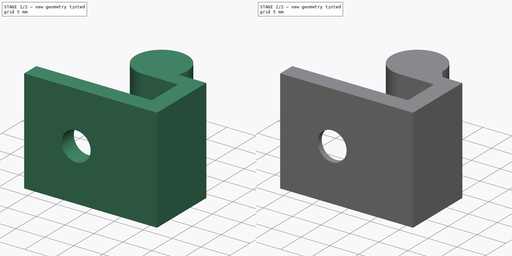
[diagram: build sequence overview — one tinted view per stage of 2, left to right]
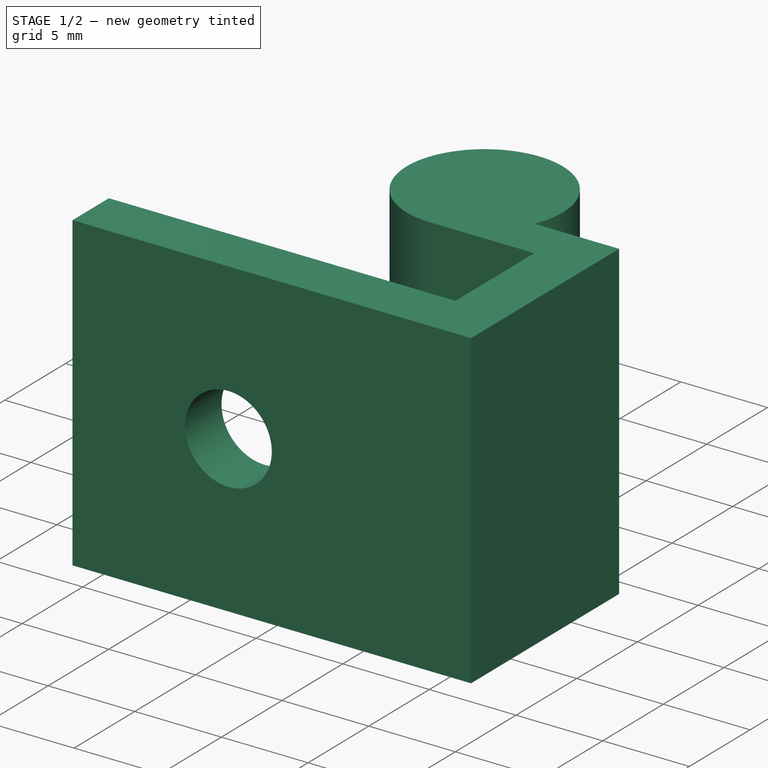
[diagram: stage 1 of 2 — iso view after this stage's code; geometry added in this stage tinted green]
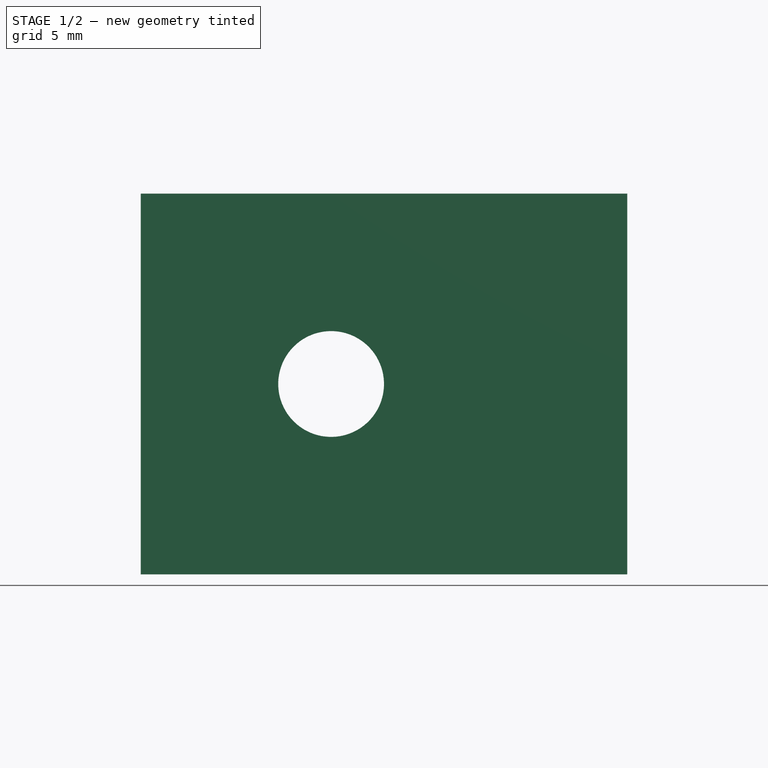
[diagram: stage 1 of 2 — front view after this stage's code; geometry added in this stage tinted green]
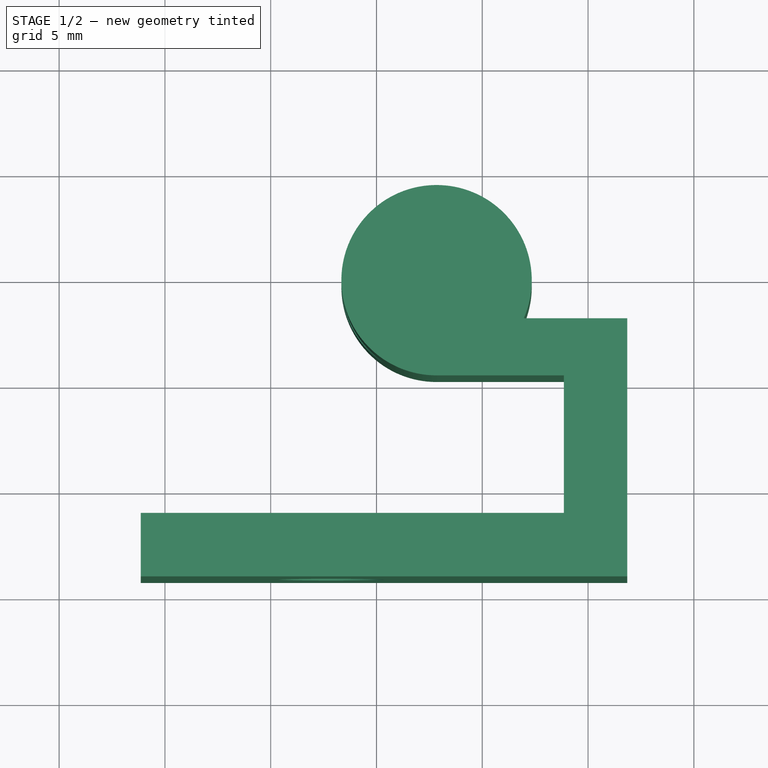
[diagram: stage 1 of 2 — top view after this stage's code; geometry added in this stage tinted green]
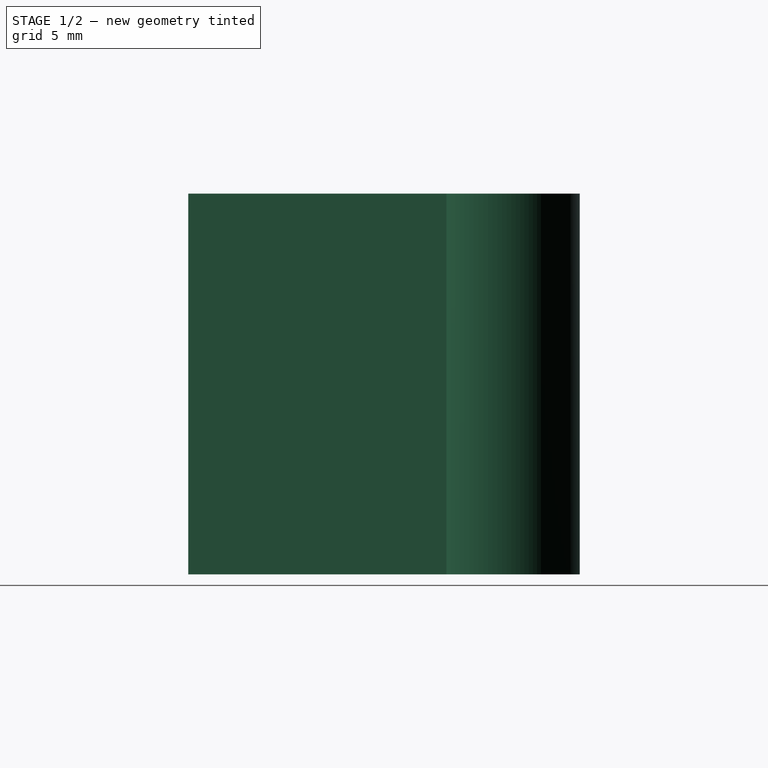
[diagram: stage 1 of 2 — right view after this stage's code; geometry added in this stage tinted green]
FCSTD DOCUMENT  (FreeCAD 0.16R6705 (Git))
Label: cerniera
License: All rights reserved
LicenseURL: http://it.wikipedia.org/wiki/<copyright redacted>
objects: Sketcher::SketchObject×2, PartDesign::Chamfer×2, PartDesign::Pad×1, PartDesign::Pocket×1
note: 8 computed .brp shape members not serialized (recipe doc carries the construction recipe); baked Part::Feature solids carry a one-line shape summary decoded from their .brp

FEATURE [Sketcher::SketchObject] Sketch
  sketch-geometry (9):
    g0: LineSegment StartX=-6.14513 StartY=-9.21448 StartZ=0 EndX=16.8549 EndY=-9.21448 EndZ=0
    g1: LineSegment StartX=16.8549 StartY=-9.21448 StartZ=0 EndX=16.8549 EndY=2.98552 EndZ=0
    g2: LineSegment StartX=-6.14513 StartY=-9.21448 StartZ=0 EndX=-6.14513 EndY=-6.21448 EndZ=0
    g3: LineSegment StartX=-6.14513 StartY=-6.21448 StartZ=0 EndX=13.8549 EndY=-6.21448 EndZ=0
    g4: LineSegment StartX=13.8549 StartY=-6.21448 StartZ=0 EndX=13.8549 EndY=0.285523 EndZ=0
    g5: LineSegment StartX=13.8549 StartY=0.285523 StartZ=0 EndX=7.83937 EndY=0.285523 EndZ=0
    g6: LineSegment StartX=11.9637 StartY=2.98552 StartZ=0 EndX=16.8549 EndY=2.98552 EndZ=0
    g7: GeomPoint [constr] X=16.8549 Y=2.98552 Z=0
    g8: ArcOfCircle CenterX=7.8394 CenterY=4.78552 CenterZ=0 NormalX=0 NormalY=0 NormalZ=1 Radius=4.5 StartAngle=5.87167 EndAngle=10.9956
  constraints (23):
    c: Distance(g0) = 23
    c: Coincident(g1,g0)
    c: Vertical(g1)
    c: Distance(g1) = 12.2
    c: Coincident(g2,g0)
    c: Vertical(g2)
    c: Distance(g2) = 3
    c: Coincident(g3,g2)
    c: Horizontal(g3)
    c: Coincident(g4,g3)
    c: Vertical(g4)
    c: Distance(g4) = 6.5
    c: Coincident(g5,g4)
    c: Horizontal(g5)
    c: Horizontal(g6)
    c: Coincident(g7,g6)
    c: Coincident(g6,g1)
    c: Distance(g3) = 20
    c: Horizontal(g0)
    c: Coincident(g8,g6)
    c: Coincident(g8,g5)
    c: Radius(g8) = 4.5
    c: Tangent(g8,g5)
FEATURE [PartDesign::Pad] Pad
  Length = 18
  Length2 = 100
  Sketch = -> Sketch
  Type = 0
FEATURE [Sketcher::SketchObject] Sketch001
  ExternalGeometry = -> [Pad]
  Placement = pos=(0,-9.21448,0) rot=(1,0,0;1.5708rad)
  Support = -> Pad [Face1]
  sketch-geometry (1):
    g0: Circle CenterX=2.85487 CenterY=9 CenterZ=0 NormalX=0 NormalY=0 NormalZ=1 Radius=2.5
  constraints (3):
    c: Radius(g0) = 2.5
    c: DistanceY(g-1,g0) = 9
    c: DistanceX(g0,g-3) = 14
FEATURE [PartDesign::Pocket] Pocket
  Length = 5
  Sketch = -> Sketch001
  Type = 1
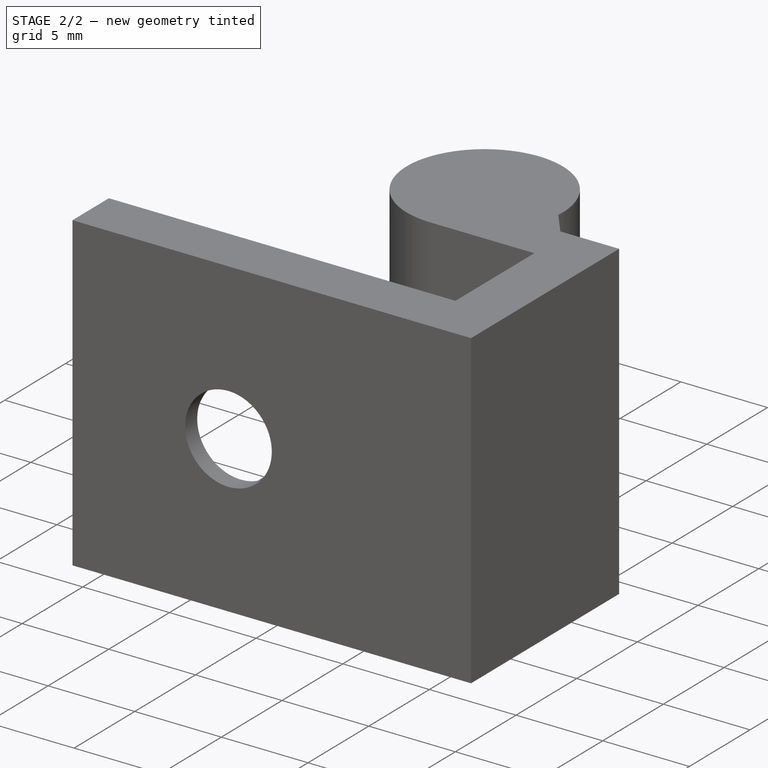
[diagram: stage 2 of 2 — iso view after this stage's code; geometry added in this stage tinted green]
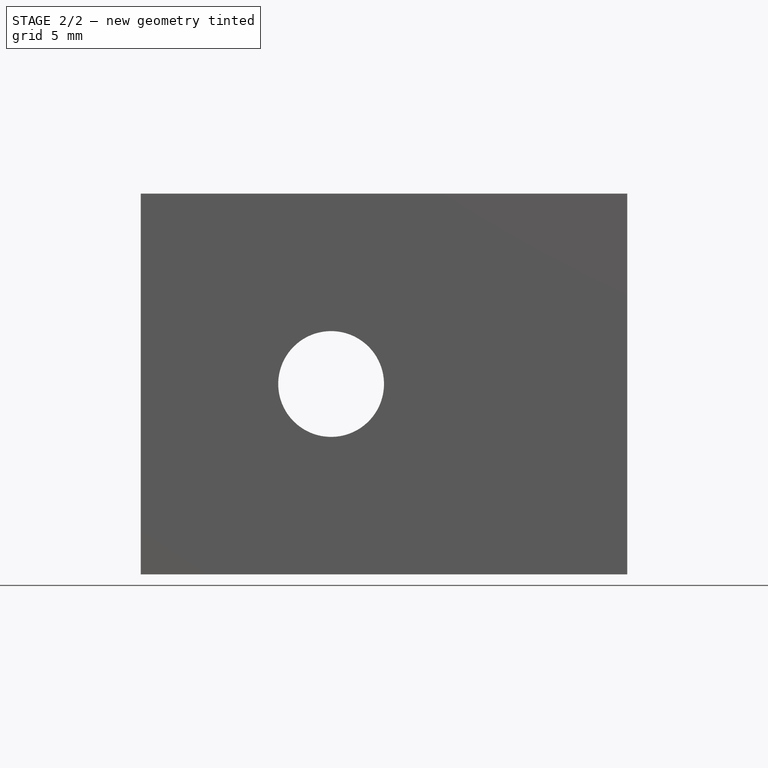
[diagram: stage 2 of 2 — front view after this stage's code; geometry added in this stage tinted green]
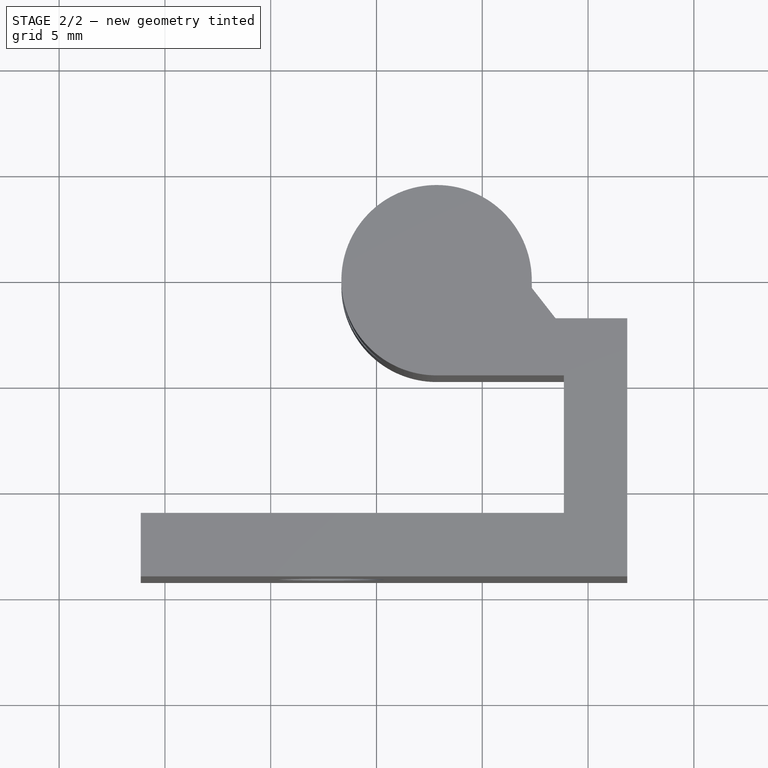
[diagram: stage 2 of 2 — top view after this stage's code; geometry added in this stage tinted green]
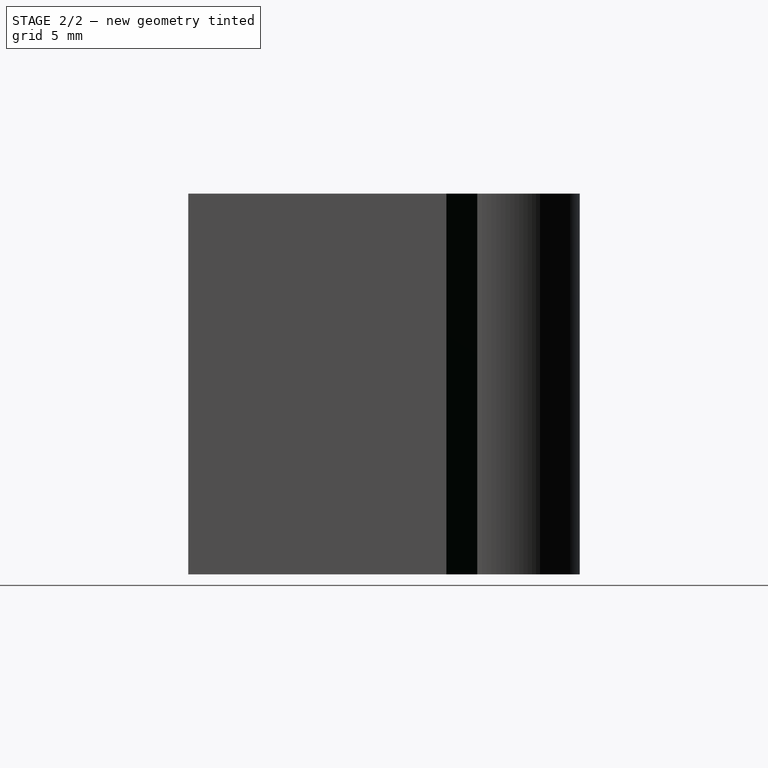
[diagram: stage 2 of 2 — right view after this stage's code; geometry added in this stage tinted green]
FEATURE [PartDesign::Chamfer] Chamfer
  Base = -> Pocket [Edge23]
  Size = 2
FEATURE [PartDesign::Chamfer] Chamfer001
  Base = -> Chamfer [Edge28]
  Size = 1.5
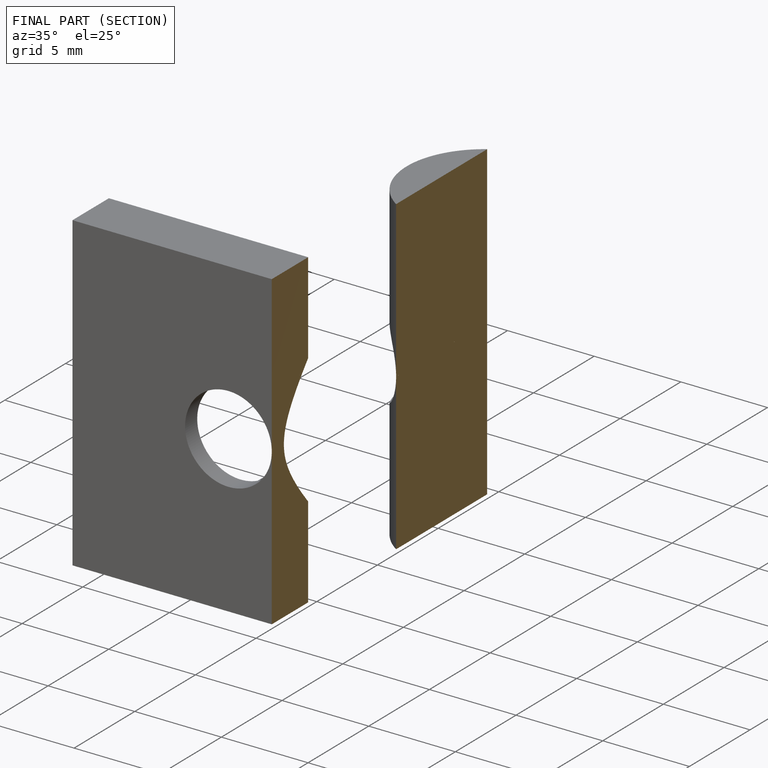
[diagram: finished part — half-section view (interior)]
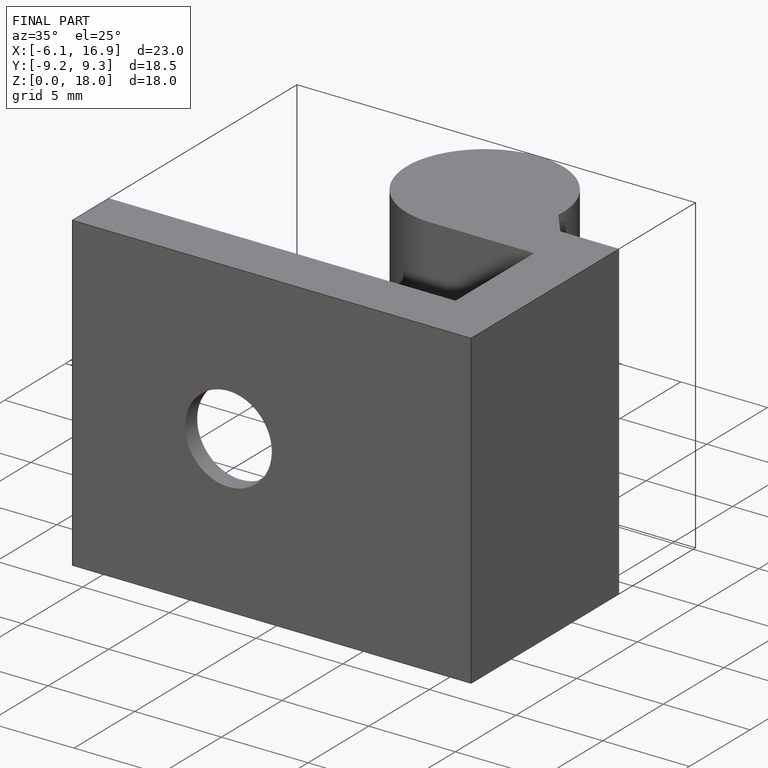
[diagram: finished part — iso view with bounding-box wireframe]
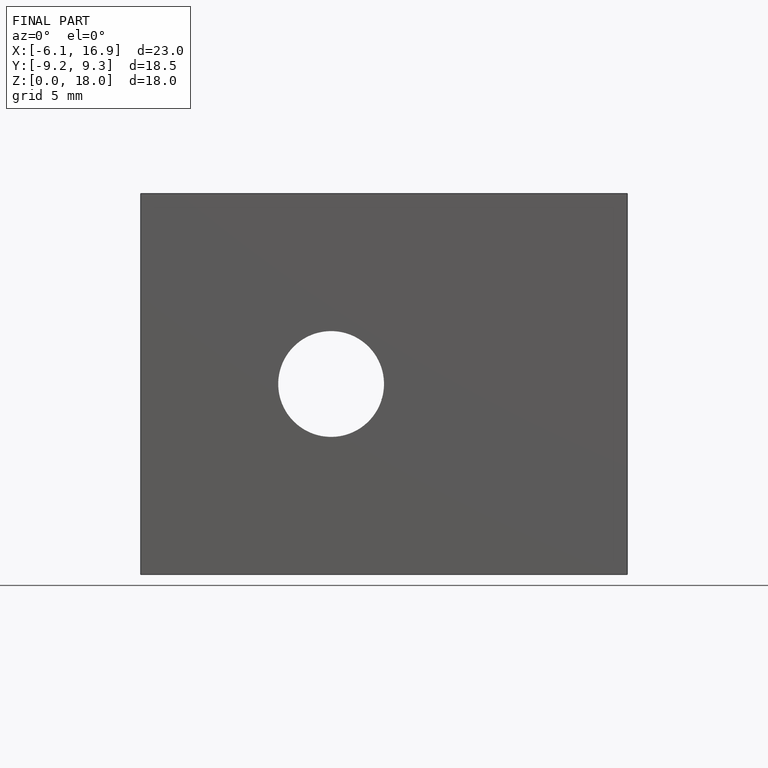
[diagram: finished part — front view with bounding-box wireframe]
